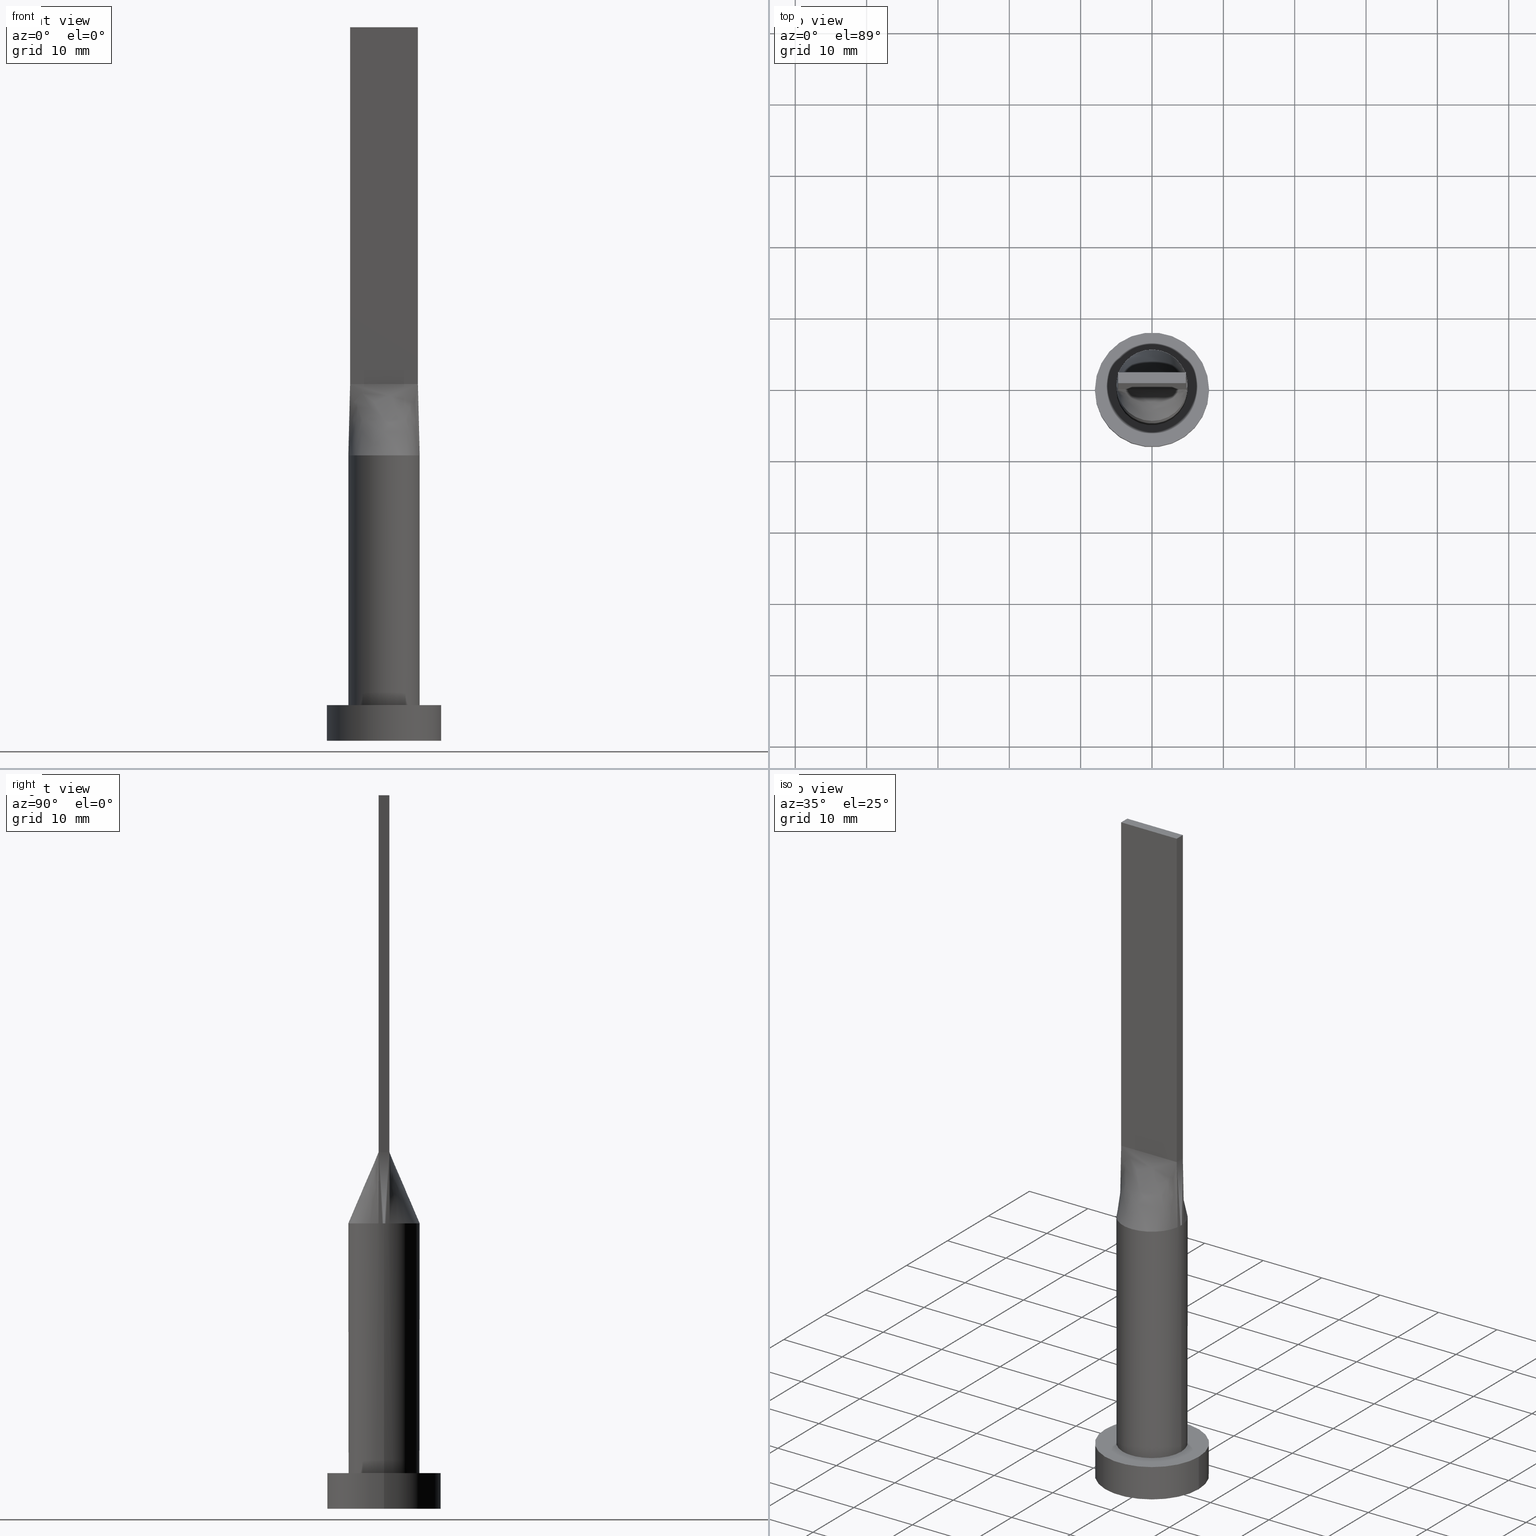
[diagram: canonical four-view strip — front | top / right | iso, engineering-drawing reading convention]
A machine part, canonical four-view strip (front | top / right | iso — engineering-drawing reading convention). The complete STEP part file that produces these views, byte-faithful:
ISO-10303-21;
HEADER;
FILE_DESCRIPTION (( 'STEP AP203' ),
    '1' );
FILE_NAME ('07e1.STEP',
    '2023-02-13T09:53:20',
    ( '' ),
    ( '' ),
    'SwSTEP 2.0',
    'SolidWorks 2019',
    '' );
FILE_SCHEMA (( 'CONFIG_CONTROL_DESIGN' ));
ENDSEC;

DATA;
#1 = DIRECTION ( 'NONE',  ( -0.000000000000000000, 0.000000000000000000, -1.000000000000000000 ) ) ;
#2 = CARTESIAN_POINT ( 'NONE',  ( -4.750000000000000000, 0.7500000000000002220, 100.0000000000000000 ) ) ;
#3 = VERTEX_POINT ( 'NONE', #569 ) ;
#4 = CARTESIAN_POINT ( 'NONE',  ( 4.029217956433126524, 3.021257902548482477, 40.00000000000000711 ) ) ;
#5 = DIRECTION ( 'NONE',  ( -0.000000000000000000, -0.000000000000000000, -1.000000000000000000 ) ) ;
#6 = APPLICATION_PROTOCOL_DEFINITION ( 'international standard', 'config_control_design', 1994, #356 ) ;
#7 = CARTESIAN_POINT ( 'NONE',  ( -4.750000000000000000, 0.7500000000000002220, 50.00000000000000000 ) ) ;
#8 = ORIENTED_EDGE ( 'NONE', *, *, #567, .F. ) ;
#9 = CARTESIAN_POINT ( 'NONE',  ( -4.753727492665067444, 1.629988260829202007, 40.00000000000001421 ) ) ;
#10 = CARTESIAN_POINT ( 'NONE',  ( -4.750000000000000000, 0.7500000000000002220, 100.0000000000000000 ) ) ;
#11 = CALENDAR_DATE ( 2023, 13, 2 ) ;
#12 = CC_DESIGN_PERSON_AND_ORGANIZATION_ASSIGNMENT ( #545, #498, ( #509 ) ) ;
#13 = EDGE_LOOP ( 'NONE', ( #165, #267, #454, #496 ) ) ;
#14 = CARTESIAN_POINT ( 'NONE',  ( 0.3560391241594590972, 5.000000000000001776, 40.00000000000000000 ) ) ;
#15 = LINE ( 'NONE', #251, #491 ) ;
#16 = CARTESIAN_POINT ( 'NONE',  ( 4.750000000000000000, 0.2500000000000009992, 50.00000000000000000 ) ) ;
#17 = AXIS2_PLACEMENT_3D ( 'NONE', #225, #127, #559 ) ;
#18 = ORIENTED_EDGE ( 'NONE', *, *, #128, .F. ) ;
#19 = CARTESIAN_POINT ( 'NONE',  ( 0.7119876437238013001, 4.961551549233180758, 40.00000000000001421 ) ) ;
#20 = PLANE ( 'NONE',  #197 ) ;
#21 = FACE_OUTER_BOUND ( 'NONE', #114, .T. ) ;
#22 = ORIENTED_EDGE ( 'NONE', *, *, #389, .F. ) ;
#23 = EDGE_CURVE ( 'NONE', #474, #97, #332, .T. ) ;
#24 = CARTESIAN_POINT ( 'NONE',  ( -0.7916666666666584140, -0.7499999999999995559, 50.00000000000000000 ) ) ;
#25 = CARTESIAN_POINT ( 'NONE',  ( -4.750000000000000000, 0.7500000000000002220, 50.00000000000000000 ) ) ;
#26 = ORIENTED_EDGE ( 'NONE', *, *, #45, .T. ) ;
#27 = CARTESIAN_POINT ( 'NONE',  ( -0.3958333333333254322, -0.7499999999999995559, 50.00000000000000000 ) ) ;
#28 = DIRECTION ( 'NONE',  ( 0.000000000000000000, 0.000000000000000000, 1.000000000000000000 ) ) ;
#29 = ORIENTED_EDGE ( 'NONE', *, *, #589, .T. ) ;
#30 = EDGE_LOOP ( 'NONE', ( #294, #263, #210, #205 ) ) ;
#31 = CARTESIAN_POINT ( 'NONE',  ( 1.732223102076450250, 4.702695359254404295, 39.99999999999997868 ) ) ;
#32 = CARTESIAN_POINT ( 'NONE',  ( -4.750000000000000000, -0.7499999999999991118, 50.00000000000000000 ) ) ;
#33 = VERTEX_POINT ( 'NONE', #2 ) ;
#34 = CARTESIAN_POINT ( 'NONE',  ( -0.7119876437238014111, -4.961551549233179870, 39.99999999999999289 ) ) ;
#35 = EDGE_CURVE ( 'NONE', #175, #323, #182, .T. ) ;
#36 = CARTESIAN_POINT ( 'NONE',  ( 3.166666666666673180, -0.7499999999999997780, 50.00000000000000000 ) ) ;
#37 = CARTESIAN_POINT ( 'NONE',  ( 4.332026455536841070, -2.547220758687719577, 40.00000000000001421 ) ) ;
#38 = CARTESIAN_POINT ( 'NONE',  ( -0.7119876437238006339, 4.961551549233178982, 40.00000000000000711 ) ) ;
#39 = EDGE_CURVE ( 'NONE', #123, #601, #511, .T. ) ;
#40 = CC_DESIGN_PERSON_AND_ORGANIZATION_ASSIGNMENT ( #266, #224, ( #438 ) ) ;
#41 = CARTESIAN_POINT ( 'NONE',  ( -3.958333333333336146, 0.7500000000000002220, 50.00000000000000000 ) ) ;
#42 = LINE ( 'NONE', #157, #65 ) ;
#43 = DIRECTION ( 'NONE',  ( 1.000000000000000000, 0.000000000000000000, 0.000000000000000000 ) ) ;
#44 = ORIENTED_EDGE ( 'NONE', *, *, #381, .F. ) ;
#45 = EDGE_CURVE ( 'NONE', #443, #474, #287, .T. ) ;
#46 = CARTESIAN_POINT ( 'NONE',  ( 4.938814826645345768, 0.7798128673650542853, 40.00000000000000000 ) ) ;
#47 = CIRCLE ( 'NONE', #134, 5.000000000000000000 ) ;
#48 = DIRECTION ( 'NONE',  ( 0.000000000000000000, 0.000000000000000000, 1.000000000000000000 ) ) ;
#49 = VECTOR ( 'NONE', #388, 1000.000000000000000 ) ;
#50 = ADVANCED_BREP_SHAPE_REPRESENTATION ( '07e1', ( #51, #362 ), #334 ) ;
#51 = MANIFOLD_SOLID_BREP ( 'P�idat vysunut�m5', #194 ) ;
#52 = DIRECTION ( 'NONE',  ( 1.000000000000000000, -6.847592668329501559E-17, 0.000000000000000000 ) ) ;
#53 = CARTESIAN_POINT ( 'NONE',  ( -2.177083333333339699, 0.7500000000000002220, 50.00000000000000000 ) ) ;
#54 = ADVANCED_FACE ( 'NONE', ( #336 ), #280, .F. ) ;
#55 = FACE_OUTER_BOUND ( 'NONE', #30, .T. ) ;
#56 = CARTESIAN_POINT ( 'NONE',  ( 4.999625637456156291, 0.2615280553041483547, 40.00000000000000000 ) ) ;
#57 = LINE ( 'NONE', #73, #347 ) ;
#58 = PLANE ( 'NONE',  #122 ) ;
#59 = APPROVAL_DATE_TIME ( #64, #275 ) ;
#60 = DIRECTION ( 'NONE',  ( 1.000000000000000000, 0.000000000000000000, 0.000000000000000000 ) ) ;
#61 = AXIS2_PLACEMENT_3D ( 'NONE', #405, #241, #43 ) ;
#62 = CARTESIAN_POINT ( 'NONE',  ( 1.732223102076450250, 4.702695359254404295, 39.99999999999997868 ) ) ;
#63 = LINE ( 'NONE', #517, #550 ) ;
#64 = DATE_AND_TIME ( #11, #523 ) ;
#65 = VECTOR ( 'NONE', #476, 1000.000000000000000 ) ;
#66 = LOCAL_TIME ( 10, 53, 20.00000000000000000, #521 ) ;
#67 = CARTESIAN_POINT ( 'NONE',  ( -4.750000000000000000, -0.7499999999999991118, 50.00000000000000000 ) ) ;
#68 = ORIENTED_EDGE ( 'NONE', *, *, #367, .T. ) ;
#69 = APPROVAL_DATE_TIME ( #292, #296 ) ;
#70 = CARTESIAN_POINT ( 'NONE',  ( 0.000000000000000000, 0.000000000000000000, 5.000000000000000000 ) ) ;
#71 = CC_DESIGN_PERSON_AND_ORGANIZATION_ASSIGNMENT ( #364, #145, ( #156 ) ) ;
#72 = ORIENTED_EDGE ( 'NONE', *, *, #420, .F. ) ;
#73 = CARTESIAN_POINT ( 'NONE',  ( 4.844407413322673328, 0.7649064336825270871, 45.00000000000000000 ) ) ;
#74 = DIRECTION ( 'NONE',  ( -0.000000000000000000, -0.000000000000000000, -1.000000000000000000 ) ) ;
#75 = ORIENTED_EDGE ( 'NONE', *, *, #192, .F. ) ;
#76 = EDGE_CURVE ( 'NONE', #323, #120, #200, .T. ) ;
#77 = CARTESIAN_POINT ( 'NONE',  ( -4.354166666666666075, -0.7499999999999992228, 50.00000000000000711 ) ) ;
#78 = CIRCLE ( 'NONE', #17, 5.000000000000000000 ) ;
#79 = CARTESIAN_POINT ( 'NONE',  ( 2.353781608410062454, 4.424438117685770777, 40.00000000000000000 ) ) ;
#80 = DIRECTION ( 'NONE',  ( 1.000000000000000000, -6.847592668329501559E-17, 0.000000000000000000 ) ) ;
#81 = ORIENTED_EDGE ( 'NONE', *, *, #420, .T. ) ;
#82 = CARTESIAN_POINT ( 'NONE',  ( 4.753727492665065668, 1.629988260829201563, 40.00000000000001421 ) ) ;
#83 = CARTESIAN_POINT ( 'NONE',  ( -4.753727492665065668, -1.629988260829201119, 40.00000000000000711 ) ) ;
#84 = APPROVAL_ROLE ( '' ) ;
#85 = CARTESIAN_POINT ( 'NONE',  ( -4.874625637456156291, 1.186344398896586716, 40.00000000000000000 ) ) ;
#86 = LOCAL_TIME ( 10, 53, 20.00000000000000000, #404 ) ;
#87 = CARTESIAN_POINT ( 'NONE',  ( 4.999812818728077701, 1.241126956226958231E-15, 40.00000000000000000 ) ) ;
#88 = CARTESIAN_POINT ( 'NONE',  ( 0.000000000000000000, 0.000000000000000000, 5.000000000000000000 ) ) ;
#89 = CARTESIAN_POINT ( 'NONE',  ( 0.1979166666666585250, 0.7500000000000001110, 50.00000000000000000 ) ) ;
#90 = FACE_OUTER_BOUND ( 'NONE', #304, .T. ) ;
#91 = EDGE_CURVE ( 'NONE', #443, #257, #478, .T. ) ;
#92 = CARTESIAN_POINT ( 'NONE',  ( -1.583333333333340587, 0.7500000000000002220, 50.00000000000000000 ) ) ;
#93 = DIRECTION ( 'NONE',  ( 0.000000000000000000, 0.000000000000000000, 1.000000000000000000 ) ) ;
#94 = VERTEX_POINT ( 'NONE', #514 ) ;
#95 = VECTOR ( 'NONE', #231, 1000.000000000000114 ) ;
#96 = CC_DESIGN_DATE_AND_TIME_ASSIGNMENT ( #502, #372, ( #509 ) ) ;
#97 = VERTEX_POINT ( 'NONE', #437 ) ;
#98 = CARTESIAN_POINT ( 'NONE',  ( -1.400150253878312823, 4.812847332616943419, 40.00000000000000711 ) ) ;
#99 = DIRECTION ( 'NONE',  ( 0.000000000000000000, 0.000000000000000000, 1.000000000000000000 ) ) ;
#100 = CALENDAR_DATE ( 2023, 13, 2 ) ;
#101 = EDGE_LOOP ( 'NONE', ( #330, #415, #151, #8, #126 ) ) ;
#102 = CARTESIAN_POINT ( 'NONE',  ( 1.583333333333324155, 0.7500000000000002220, 50.00000000000000000 ) ) ;
#103 = DIRECTION ( 'NONE',  ( -0.000000000000000000, -0.000000000000000000, -1.000000000000000000 ) ) ;
#104 = DIRECTION ( 'NONE',  ( -1.000000000000000000, 6.847592668329501559E-17, 0.000000000000000000 ) ) ;
#105 = ORIENTED_EDGE ( 'NONE', *, *, #45, .F. ) ;
#106 = CARTESIAN_POINT ( 'NONE',  ( 5.000000000000000000, 6.123233995736766282E-16, 5.000000000000000000 ) ) ;
#107 = DIRECTION ( 'NONE',  ( 0.000000000000000000, 0.000000000000000000, 1.000000000000000000 ) ) ;
#108 = CARTESIAN_POINT ( 'NONE',  ( -4.750000000000000000, 0.5000000000000000000, 50.00000000000000000 ) ) ;
#109 = ORIENTED_EDGE ( 'NONE', *, *, #206, .F. ) ;
#110 = CARTESIAN_POINT ( 'NONE',  ( 1.732223102076449583, -4.702695359254404295, 40.00000000000000711 ) ) ;
#111 = VECTOR ( 'NONE', #573, 1000.000000000000000 ) ;
#112 = DATE_TIME_ROLE ( 'creation_date' ) ;
#113 = CARTESIAN_POINT ( 'NONE',  ( -4.999625637456156291, -0.2615280553041481326, 40.00000000000000000 ) ) ;
#114 = EDGE_LOOP ( 'NONE', ( #432, #159, #105, #109, #539 ) ) ;
#115 = CARTESIAN_POINT ( 'NONE',  ( -3.166666666666662966, -0.7499999999999993339, 50.00000000000000711 ) ) ;
#116 = CARTESIAN_POINT ( 'NONE',  ( -4.938814826645345768, -0.7798128673650532861, 40.00000000000000000 ) ) ;
#117 = ADVANCED_FACE ( 'NONE', ( #397 ), #142, .T. ) ;
#118 = EDGE_LOOP ( 'NONE', ( #141, #193, #460, #44, #418, #317 ) ) ;
#119 = PLANE ( 'NONE',  #272 ) ;
#120 = VERTEX_POINT ( 'NONE', #350 ) ;
#121 = CARTESIAN_POINT ( 'NONE',  ( 0.000000000000000000, 0.000000000000000000, 5.000000000000000000 ) ) ;
#122 = AXIS2_PLACEMENT_3D ( 'NONE', #240, #202, #297 ) ;
#123 = VERTEX_POINT ( 'NONE', #299 ) ;
#124 = CARTESIAN_POINT ( 'NONE',  ( 5.000000000000000000, 6.123233995736766282E-16, 40.00000000000000000 ) ) ;
#125 = CARTESIAN_POINT ( 'NONE',  ( 1.400150253878312157, -4.812847332616943419, 39.99999999999999289 ) ) ;
#126 = ORIENTED_EDGE ( 'NONE', *, *, #551, .F. ) ;
#127 = DIRECTION ( 'NONE',  ( 0.000000000000000000, 0.000000000000000000, 1.000000000000000000 ) ) ;
#128 = EDGE_CURVE ( 'NONE', #570, #553, #577, .T. ) ;
#129 = CARTESIAN_POINT ( 'NONE',  ( 0.000000000000000000, 0.000000000000000000, 40.00000000000000000 ) ) ;
#130 = CARTESIAN_POINT ( 'NONE',  ( 0.000000000000000000, 0.000000000000000000, 40.00000000000000000 ) ) ;
#131 = CC_DESIGN_APPROVAL ( #395, ( #156 ) ) ;
#132 = CARTESIAN_POINT ( 'NONE',  ( 4.750000000000000000, -0.7499999999999997780, 50.00000000000000000 ) ) ;
#133 = VECTOR ( 'NONE', #340, 1000.000000000000000 ) ;
#134 = AXIS2_PLACEMENT_3D ( 'NONE', #144, #568, #154 ) ;
#135 = LINE ( 'NONE', #434, #262 ) ;
#136 = ADVANCED_FACE ( 'NONE', ( #409 ), #216, .T. ) ;
#137 = CARTESIAN_POINT ( 'NONE',  ( -4.750000000000000000, -0.7499999999999991118, 50.00000000000000000 ) ) ;
#138 = ORIENTED_EDGE ( 'NONE', *, *, #429, .F. ) ;
#139 = CARTESIAN_POINT ( 'NONE',  ( 4.354166666666665186, 0.7500000000000002220, 50.00000000000000000 ) ) ;
#140 = LINE ( 'NONE', #452, #361 ) ;
#141 = ORIENTED_EDGE ( 'NONE', *, *, #575, .F. ) ;
#142 = B_SPLINE_SURFACE_WITH_KNOTS ( 'NONE', 3, 1, ( 
 ( #442, #293 ),
 ( #189, #146 ),
 ( #522, #450 ),
 ( #56, #16 ),
 ( #244, #401 ),
 ( #582, #150 ) ),
 .UNSPECIFIED., .F., .F., .F.,
 ( 4, 2, 4 ),
 ( 2, 2 ),
 ( 0.000000000000000000, 0.5000000000000000000, 1.000000000000000000 ),
 ( 0.000000000000000000, 1.000000000000000000 ),
 .UNSPECIFIED. ) ;
#143 = CARTESIAN_POINT ( 'NONE',  ( 0.7916666666666568597, 0.7500000000000002220, 50.00000000000000000 ) ) ;
#144 = CARTESIAN_POINT ( 'NONE',  ( 0.000000000000000000, 0.000000000000000000, 40.00000000000000000 ) ) ;
#145 = PERSON_AND_ORGANIZATION_ROLE ( 'creator' ) ;
#146 = CARTESIAN_POINT ( 'NONE',  ( 4.750000000000000000, -0.4999999999999992784, 50.00000000000000000 ) ) ;
#147 = CARTESIAN_POINT ( 'NONE',  ( 8.000000000000000000, 9.797174393178825657E-16, 5.000000000000000000 ) ) ;
#148 = VECTOR ( 'NONE', #408, 1000.000000000000000 ) ;
#149 = DIRECTION ( 'NONE',  ( -0.000000000000000000, -0.000000000000000000, -1.000000000000000000 ) ) ;
#150 = CARTESIAN_POINT ( 'NONE',  ( 4.750000000000000000, 0.7500000000000002220, 50.00000000000000000 ) ) ;
#151 = ORIENTED_EDGE ( 'NONE', *, *, #557, .T. ) ;
#152 = ADVANCED_FACE ( 'NONE', ( #21 ), #516, .T. ) ;
#153 = CARTESIAN_POINT ( 'NONE',  ( 4.332026455536839293, 2.547220758687718689, 40.00000000000000711 ) ) ;
#154 = DIRECTION ( 'NONE',  ( 1.000000000000000000, 0.000000000000000000, 0.000000000000000000 ) ) ;
#155 = DIRECTION ( 'NONE',  ( 1.000000000000000000, 0.000000000000000000, 0.000000000000000000 ) ) ;
#156 = PRODUCT_DEFINITION ( 'NEZN�M�', '', #438, #617 ) ;
#157 = CARTESIAN_POINT ( 'NONE',  ( 8.000000000000000000, 9.797174393178825657E-16, 5.000000000000000000 ) ) ;
#158 = CARTESIAN_POINT ( 'NONE',  ( -4.750000000000000000, -0.4999999999999994449, 50.00000000000000000 ) ) ;
#159 = ORIENTED_EDGE ( 'NONE', *, *, #381, .T. ) ;
#160 = CARTESIAN_POINT ( 'NONE',  ( 4.750000000000000000, 0.7500000000000002220, 50.00000000000000000 ) ) ;
#161 = CARTESIAN_POINT ( 'NONE',  ( 0.7119876437238003009, -4.961551549233181646, 40.00000000000000711 ) ) ;
#162 = ADVANCED_FACE ( 'NONE', ( #591, #414 ), #303, .T. ) ;
#163 = APPROVAL_ROLE ( '' ) ;
#164 = DIRECTION ( 'NONE',  ( 0.000000000000000000, 0.000000000000000000, 1.000000000000000000 ) ) ;
#165 = ORIENTED_EDGE ( 'NONE', *, *, #470, .F. ) ;
#166 = CARTESIAN_POINT ( 'NONE',  ( -4.332026455536839293, -2.547220758687717801, 40.00000000000000711 ) ) ;
#167 = EDGE_LOOP ( 'NONE', ( #598, #607, #138, #81 ) ) ;
#168 = CARTESIAN_POINT ( 'NONE',  ( 3.404830936252118967, -3.673931880027069496, 40.00000000000002842 ) ) ;
#169 = EDGE_LOOP ( 'NONE', ( #29, #410, #615, #345 ) ) ;
#170 = CARTESIAN_POINT ( 'NONE',  ( -3.958333333333332149, -0.7499999999999993339, 50.00000000000000711 ) ) ;
#171 = ORIENTED_EDGE ( 'NONE', *, *, #470, .T. ) ;
#172 = CC_DESIGN_SECURITY_CLASSIFICATION ( #509, ( #438 ) ) ;
#173 = CARTESIAN_POINT ( 'NONE',  ( -2.353781608410062010, 4.424438117685770777, 39.99999999999998579 ) ) ;
#174 = CC_DESIGN_PERSON_AND_ORGANIZATION_ASSIGNMENT ( #310, #465, ( #438 ) ) ;
#175 = VERTEX_POINT ( 'NONE', #499 ) ;
#176 = CARTESIAN_POINT ( 'NONE',  ( -0.3560391241594593192, 5.000000000000000000, 39.99999999999998579 ) ) ;
#177 = DIRECTION ( 'NONE',  ( -1.000000000000000000, 0.000000000000000000, 0.000000000000000000 ) ) ;
#178 = EDGE_CURVE ( 'NONE', #570, #284, #490, .T. ) ;
#179 = CARTESIAN_POINT ( 'NONE',  ( 3.958333333333336146, -0.7499999999999997780, 50.00000000000000000 ) ) ;
#180 = PERSON ( 'NEUR�EN�', 'NEUR�EN�', 'NEUR�EN�', ('NEUR�EN�'), ('NEUR�EN�'), ('NEUR�EN�') ) ;
#181 = CARTESIAN_POINT ( 'NONE',  ( 0.3958333333333243220, 0.7500000000000002220, 50.00000000000000000 ) ) ;
#182 = CIRCLE ( 'NONE', #533, 5.000000000000000000 ) ;
#183 = AXIS2_PLACEMENT_3D ( 'NONE', #399, #445, #342 ) ;
#184 = CARTESIAN_POINT ( 'NONE',  ( 0.9895833333333237114, 0.7500000000000002220, 50.00000000000000000 ) ) ;
#185 = CARTESIAN_POINT ( 'NONE',  ( 0.000000000000000000, 0.000000000000000000, 0.000000000000000000 ) ) ;
#186 = VERTEX_POINT ( 'NONE', #209 ) ;
#187 = CARTESIAN_POINT ( 'NONE',  ( 1.400150253878312823, 4.812847332616943419, 40.00000000000000711 ) ) ;
#188 = CARTESIAN_POINT ( 'NONE',  ( 4.750000000000000000, -0.7499999999999997780, 100.0000000000000000 ) ) ;
#189 = CARTESIAN_POINT ( 'NONE',  ( 4.979355367185886116, -0.5230561106082984857, 40.00000000000000000 ) ) ;
#190 = CARTESIAN_POINT ( 'NONE',  ( -4.938814826645345768, 0.7798128673650545073, 40.00000000000000000 ) ) ;
#191 = CARTESIAN_POINT ( 'NONE',  ( -8.000000000000000000, 0.000000000000000000, 0.000000000000000000 ) ) ;
#192 = EDGE_CURVE ( 'NONE', #543, #120, #211, .T. ) ;
#193 = ORIENTED_EDGE ( 'NONE', *, *, #417, .F. ) ;
#194 = CLOSED_SHELL ( 'NONE', ( #508, #510, #136, #162, #279, #612, #495, #117, #152, #541, #331, #339, #54, #319, #468 ) ) ;
#195 = VERTEX_POINT ( 'NONE', #453 ) ;
#196 = CARTESIAN_POINT ( 'NONE',  ( -2.353781608410062010, 4.424438117685770777, 39.99999999999998579 ) ) ;
#197 = AXIS2_PLACEMENT_3D ( 'NONE', #394, #99, #526 ) ;
#198 = CARTESIAN_POINT ( 'NONE',  ( 4.938814826645345768, 0.7798128673650538412, 40.00000000000000000 ) ) ;
#199 = APPROVAL_STATUS ( 'not_yet_approved' ) ;
#200 = LINE ( 'NONE', #384, #133 ) ;
#201 = CC_DESIGN_PERSON_AND_ORGANIZATION_ASSIGNMENT ( #203, #574, ( #387 ) ) ;
#202 = DIRECTION ( 'NONE',  ( 0.000000000000000000, -1.000000000000000000, 0.000000000000000000 ) ) ;
#203 = PERSON_AND_ORGANIZATION ( #180, #278 ) ;
#204 = CARTESIAN_POINT ( 'NONE',  ( -4.750000000000000000, 0.2500000000000000555, 50.00000000000000000 ) ) ;
#205 = ORIENTED_EDGE ( 'NONE', *, *, #389, .T. ) ;
#206 = EDGE_CURVE ( 'NONE', #601, #443, #256, .T. ) ;
#207 = CARTESIAN_POINT ( 'NONE',  ( 2.643217737595827455, -4.256483892511438327, 40.00000000000000000 ) ) ;
#208 = APPLICATION_PROTOCOL_DEFINITION ( 'international standard', 'config_control_design', 1994, #324 ) ;
#209 = CARTESIAN_POINT ( 'NONE',  ( 8.000000000000000000, 9.797174393178825657E-16, 0.000000000000000000 ) ) ;
#210 = ORIENTED_EDGE ( 'NONE', *, *, #535, .F. ) ;
#211 = CIRCLE ( 'NONE', #286, 5.000000000000000000 ) ;
#212 = CARTESIAN_POINT ( 'NONE',  ( -8.000000000000000000, 0.000000000000000000, 5.000000000000000000 ) ) ;
#213 = CARTESIAN_POINT ( 'NONE',  ( 0.7916666666666752894, -0.7499999999999995559, 50.00000000000000000 ) ) ;
#214 = SECURITY_CLASSIFICATION_LEVEL ( 'unclassified' ) ;
#215 = VECTOR ( 'NONE', #338, 1000.000000000000000 ) ;
#216 = CYLINDRICAL_SURFACE ( 'NONE', #433, 8.000000000000000000 ) ;
#217 = ORIENTED_EDGE ( 'NONE', *, *, #567, .T. ) ;
#218 = CARTESIAN_POINT ( 'NONE',  ( -4.874625637456154514, -1.186344398896584718, 39.99999999999999289 ) ) ;
#219 = PERSON_AND_ORGANIZATION ( #180, #278 ) ;
#220 = ORIENTED_EDGE ( 'NONE', *, *, #325, .F. ) ;
#221 = CARTESIAN_POINT ( 'NONE',  ( -1.583333333333326376, -0.7499999999999995559, 50.00000000000001421 ) ) ;
#222 = CIRCLE ( 'NONE', #333, 8.000000000000000000 ) ;
#223 = DIRECTION ( 'NONE',  ( 0.000000000000000000, 0.000000000000000000, 1.000000000000000000 ) ) ;
#224 = PERSON_AND_ORGANIZATION_ROLE ( 'creator' ) ;
#225 = CARTESIAN_POINT ( 'NONE',  ( 0.000000000000000000, 0.000000000000000000, 40.00000000000000000 ) ) ;
#226 = CARTESIAN_POINT ( 'NONE',  ( 4.753727492665065668, -1.629988260829203561, 40.00000000000000000 ) ) ;
#227 = EDGE_CURVE ( 'NONE', #186, #284, #222, .T. ) ;
#228 = FACE_OUTER_BOUND ( 'NONE', #392, .T. ) ;
#229 = AXIS2_PLACEMENT_3D ( 'NONE', #88, #374, #554 ) ;
#230 = CARTESIAN_POINT ( 'NONE',  ( 4.874625637456156291, -1.186344398896586938, 39.99999999999999289 ) ) ;
#231 = DIRECTION ( 'NONE',  ( -0.01887803397728732291, -0.002980742206940062075, -0.9998173508241633423 ) ) ;
#232 = CARTESIAN_POINT ( 'NONE',  ( -4.874625637456156291, 1.186344398896586716, 40.00000000000000000 ) ) ;
#233 = DIRECTION ( 'NONE',  ( 1.000000000000000000, 0.000000000000000000, 0.000000000000000000 ) ) ;
#234 = DIRECTION ( 'NONE',  ( 0.000000000000000000, 0.000000000000000000, 1.000000000000000000 ) ) ;
#235 = ORIENTED_EDGE ( 'NONE', *, *, #535, .T. ) ;
#236 = AXIS2_PLACEMENT_3D ( 'NONE', #585, #390, #1 ) ;
#237 = FACE_OUTER_BOUND ( 'NONE', #169, .T. ) ;
#238 = LOCAL_TIME ( 10, 53, 20.00000000000000000, #606 ) ;
#239 = B_SPLINE_SURFACE_WITH_KNOTS ( 'NONE', 3, 1, ( 
 ( #46, #250 ),
 ( #448, #139 ),
 ( #525, #515 ),
 ( #153, #398 ),
 ( #4, #295 ),
 ( #512, #528 ),
 ( #346, #488 ),
 ( #621, #102 ),
 ( #242, #571 ),
 ( #62, #184 ),
 ( #187, #143 ),
 ( #472, #181 ),
 ( #14, #89 ),
 ( #393, #341 ),
 ( #383, #480 ),
 ( #98, #351 ),
 ( #475, #519 ),
 ( #196, #288 ),
 ( #566, #92 ),
 ( #245, #402 ),
 ( #281, #53 ),
 ( #444, #578 ),
 ( #451, #584 ),
 ( #9, #41 ),
 ( #232, #564 ),
 ( #190, #484 ) ),
 .UNSPECIFIED., .F., .F., .F.,
 ( 4, 2, 2, 2, 2, 2, 2, 2, 2, 2, 2, 2, 4 ),
 ( 2, 2 ),
 ( 0.000000000000000000, 0.1250000000000001388, 0.2500000000000002220, 0.3125000000000002776, 0.3750000000000002776, 0.4375000000000002776, 0.5000000000000002220, 0.5625000000000002220, 0.6250000000000001110, 0.6875000000000001110, 0.7500000000000001110, 0.8750000000000001110, 1.000000000000000000 ),
 ( 0.000000000000000000, 1.000000000000000000 ),
 .UNSPECIFIED. ) ;
#240 = CARTESIAN_POINT ( 'NONE',  ( 4.750000000000000000, 0.7500000000000002220, 100.0000000000000000 ) ) ;
#241 = DIRECTION ( 'NONE',  ( 0.000000000000000000, 0.000000000000000000, 1.000000000000000000 ) ) ;
#242 = CARTESIAN_POINT ( 'NONE',  ( 2.353781608410062454, 4.424438117685770777, 40.00000000000000000 ) ) ;
#243 = LINE ( 'NONE', #188, #111 ) ;
#244 = CARTESIAN_POINT ( 'NONE',  ( 4.979355367185886116, 0.5230561106082972644, 40.00000000000000000 ) ) ;
#245 = CARTESIAN_POINT ( 'NONE',  ( -3.168723755431092748, 3.881165404529570484, 39.99999999999997868 ) ) ;
#246 = LINE ( 'NONE', #481, #148 ) ;
#247 = SHAPE_DEFINITION_REPRESENTATION ( #290, #50 ) ;
#248 = CARTESIAN_POINT ( 'NONE',  ( 0.000000000000000000, 0.000000000000000000, 40.00000000000000000 ) ) ;
#249 = ORIENTED_EDGE ( 'NONE', *, *, #429, .T. ) ;
#250 = CARTESIAN_POINT ( 'NONE',  ( 4.750000000000000000, 0.7500000000000002220, 50.00000000000000000 ) ) ;
#251 = CARTESIAN_POINT ( 'NONE',  ( 4.750000000000000000, 0.7500000000000002220, 100.0000000000000000 ) ) ;
#252 = CARTESIAN_POINT ( 'NONE',  ( -8.000000000000000000, 0.000000000000000000, 5.000000000000000000 ) ) ;
#253 = VERTEX_POINT ( 'NONE', #198 ) ;
#254 = DIRECTION ( 'NONE',  ( -0.01887803397728732291, -0.002980742206940007865, 0.9998173508241633423 ) ) ;
#255 = FACE_OUTER_BOUND ( 'NONE', #503, .T. ) ;
#256 = LINE ( 'NONE', #25, #318 ) ;
#257 = VERTEX_POINT ( 'NONE', #579 ) ;
#258 = CARTESIAN_POINT ( 'NONE',  ( -2.643217737595827010, -4.256483892511436551, 39.99999999999999289 ) ) ;
#259 = DIRECTION ( 'NONE',  ( -0.000000000000000000, -0.000000000000000000, -1.000000000000000000 ) ) ;
#260 = EDGE_LOOP ( 'NONE', ( #457, #18, #583, #500 ) ) ;
#261 = CARTESIAN_POINT ( 'NONE',  ( -4.750000000000000000, -0.7499999999999991118, 50.00000000000000000 ) ) ;
#262 = VECTOR ( 'NONE', #300, 1000.000000000000114 ) ;
#263 = ORIENTED_EDGE ( 'NONE', *, *, #367, .F. ) ;
#264 = DIRECTION ( 'NONE',  ( 0.000000000000000000, 0.000000000000000000, 1.000000000000000000 ) ) ;
#265 = EDGE_CURVE ( 'NONE', #284, #186, #581, .T. ) ;
#266 = PERSON_AND_ORGANIZATION ( #180, #278 ) ;
#267 = ORIENTED_EDGE ( 'NONE', *, *, #270, .T. ) ;
#268 = CARTESIAN_POINT ( 'NONE',  ( 4.332026455536839293, 2.547220758687718689, 40.00000000000000711 ) ) ;
#269 = CARTESIAN_POINT ( 'NONE',  ( -0.1979166666666593299, -0.7499999999999994449, 50.00000000000000000 ) ) ;
#270 = EDGE_CURVE ( 'NONE', #553, #186, #42, .T. ) ;
#271 = VECTOR ( 'NONE', #52, 1000.000000000000000 ) ;
#272 = AXIS2_PLACEMENT_3D ( 'NONE', #600, #223, #605 ) ;
#273 = EDGE_CURVE ( 'NONE', #175, #601, #285, .T. ) ;
#274 = CARTESIAN_POINT ( 'NONE',  ( -4.938831943662458812, 0.7798155886440081286, 40.00000000000000000 ) ) ;
#275 = APPROVAL ( #375, 'NEUR�EN�' ) ;
#276 = CARTESIAN_POINT ( 'NONE',  ( -1.732223102076449806, 4.702695359254402518, 39.99999999999999289 ) ) ;
#277 = VECTOR ( 'NONE', #5, 1000.000000000000000 ) ;
#278 = ORGANIZATION ( 'NEUR�EN�', 'NEUR�EN�', '' ) ;
#279 = ADVANCED_FACE ( 'NONE', ( #485 ), #20, .F. ) ;
#280 = PLANE ( 'NONE',  #563 ) ;
#281 = CARTESIAN_POINT ( 'NONE',  ( -3.404830936252120299, 3.673931880027067720, 40.00000000000000711 ) ) ;
#282 = CARTESIAN_POINT ( 'NONE',  ( 0.000000000000000000, 0.000000000000000000, 0.000000000000000000 ) ) ;
#283 = DIRECTION ( 'NONE',  ( 6.847592668329501559E-17, 1.000000000000000000, -0.000000000000000000 ) ) ;
#284 = VERTEX_POINT ( 'NONE', #191 ) ;
#285 = LINE ( 'NONE', #590, #371 ) ;
#286 = AXIS2_PLACEMENT_3D ( 'NONE', #459, #28, #358 ) ;
#287 = LINE ( 'NONE', #587, #95 ) ;
#288 = CARTESIAN_POINT ( 'NONE',  ( -1.385416666666674068, 0.7500000000000002220, 50.00000000000000000 ) ) ;
#289 = AXIS2_PLACEMENT_3D ( 'NONE', #130, #471, #329 ) ;
#290 = PRODUCT_DEFINITION_SHAPE ( 'NONE', 'NONE',  #156 ) ;
#291 = CARTESIAN_POINT ( 'NONE',  ( 0.000000000000000000, 0.000000000000000000, 5.000000000000000000 ) ) ;
#292 = DATE_AND_TIME ( #100, #66 ) ;
#293 = CARTESIAN_POINT ( 'NONE',  ( 4.750000000000000000, -0.7499999999999997780, 50.00000000000000000 ) ) ;
#294 = ORIENTED_EDGE ( 'NONE', *, *, #39, .T. ) ;
#295 = CARTESIAN_POINT ( 'NONE',  ( 2.770833333333326376, 0.7500000000000002220, 50.00000000000000000 ) ) ;
#296 = APPROVAL ( #493, 'NEUR�EN�' ) ;
#297 = DIRECTION ( 'NONE',  ( 0.000000000000000000, -0.000000000000000000, -1.000000000000000000 ) ) ;
#298 = PERSON_AND_ORGANIZATION ( #180, #278 ) ;
#299 = CARTESIAN_POINT ( 'NONE',  ( 4.750000000000000000, 0.7500000000000002220, 50.00000000000000000 ) ) ;
#300 = DIRECTION ( 'NONE',  ( -0.01887803397728732291, 0.002980742206940386902, 0.9998173508241633423 ) ) ;
#301 = DIRECTION ( 'NONE',  ( 0.01887803397728732291, -0.002980742206940072483, 0.9998173508241633423 ) ) ;
#302 = DATE_AND_TIME ( #586, #86 ) ;
#303 = PLANE ( 'NONE',  #562 ) ;
#304 = EDGE_LOOP ( 'NONE', ( #217, #22, #220, #548 ) ) ;
#305 = CARTESIAN_POINT ( 'NONE',  ( 2.353781608410061121, -4.424438117685769889, 39.99999999999999289 ) ) ;
#306 = PERSON_AND_ORGANIZATION ( #180, #278 ) ;
#307 = CARTESIAN_POINT ( 'NONE',  ( 0.000000000000000000, 0.000000000000000000, 5.000000000000000000 ) ) ;
#308 = EDGE_LOOP ( 'NONE', ( #479, #75 ) ) ;
#309 = CARTESIAN_POINT ( 'NONE',  ( -2.770833333333329040, -0.7499999999999994449, 50.00000000000001421 ) ) ;
#310 = PERSON_AND_ORGANIZATION ( #180, #278 ) ;
#311 = CARTESIAN_POINT ( 'NONE',  ( -4.750000000000000000, 0.7500000000000002220, 50.00000000000000000 ) ) ;
#312 = UNCERTAINTY_MEASURE_WITH_UNIT (LENGTH_MEASURE( 1.000000000000000082E-05 ), #527, 'distance_accuracy_value', 'NONE');
#313 = ORIENTED_EDGE ( 'NONE', *, *, #128, .T. ) ;
#314 = CARTESIAN_POINT ( 'NONE',  ( 4.938814826645345768, 0.7798128673650538412, 40.00000000000000000 ) ) ;
#315 = CARTESIAN_POINT ( 'NONE',  ( -1.385416666666659413, -0.7499999999999995559, 50.00000000000001421 ) ) ;
#316 = CALENDAR_DATE ( 2023, 13, 2 ) ;
#317 = ORIENTED_EDGE ( 'NONE', *, *, #426, .T. ) ;
#318 = VECTOR ( 'NONE', #520, 1000.000000000000000 ) ;
#319 = ADVANCED_FACE ( 'NONE', ( #90 ), #473, .F. ) ;
#320 = DIRECTION ( 'NONE',  ( 1.000000000000000000, 0.000000000000000000, 0.000000000000000000 ) ) ;
#321 = APPROVAL_PERSON_ORGANIZATION ( #306, #296, #396 ) ;
#322 = CARTESIAN_POINT ( 'NONE',  ( 4.029217956433124748, -3.021257902548483365, 40.00000000000002132 ) ) ;
#323 = VERTEX_POINT ( 'NONE', #440 ) ;
#324 = APPLICATION_CONTEXT ( 'configuration controlled 3d designs of mechanical parts and assemblies' ) ;
#325 = EDGE_CURVE ( 'NONE', #195, #3, #246, .T. ) ;
#326 = CARTESIAN_POINT ( 'NONE',  ( -3.404830936252120299, 3.673931880027067720, 40.00000000000000711 ) ) ;
#327 = DIRECTION ( 'NONE',  ( -0.000000000000000000, -0.000000000000000000, -1.000000000000000000 ) ) ;
#328 = AXIS2_PLACEMENT_3D ( 'NONE', #185, #355, #233 ) ;
#329 = DIRECTION ( 'NONE',  ( -1.000000000000000000, 0.000000000000000000, 0.000000000000000000 ) ) ;
#330 = ORIENTED_EDGE ( 'NONE', *, *, #417, .T. ) ;
#331 = ADVANCED_FACE ( 'NONE', ( #55 ), #58, .F. ) ;
#332 = CIRCLE ( 'NONE', #61, 5.000000000000000000 ) ;
#333 = AXIS2_PLACEMENT_3D ( 'NONE', #282, #93, #348 ) ;
#334 =( GEOMETRIC_REPRESENTATION_CONTEXT ( 3 ) GLOBAL_UNCERTAINTY_ASSIGNED_CONTEXT ( ( #312 ) ) GLOBAL_UNIT_ASSIGNED_CONTEXT ( ( #527, #441, #486 ) ) REPRESENTATION_CONTEXT ( 'NONE', 'WORKASPACE' ) );
#335 = LINE ( 'NONE', #439, #215 ) ;
#336 = FACE_OUTER_BOUND ( 'NONE', #167, .T. ) ;
#337 = ORIENTED_EDGE ( 'NONE', *, *, #524, .T. ) ;
#338 = DIRECTION ( 'NONE',  ( -1.000000000000000000, 0.000000000000000000, 0.000000000000000000 ) ) ;
#339 = ADVANCED_FACE ( 'NONE', ( #403 ), #435, .F. ) ;
#340 = DIRECTION ( 'NONE',  ( -0.000000000000000000, -0.000000000000000000, -1.000000000000000000 ) ) ;
#341 = CARTESIAN_POINT ( 'NONE',  ( -0.1979166666666745400, 0.7500000000000002220, 50.00000000000000000 ) ) ;
#342 = DIRECTION ( 'NONE',  ( 1.000000000000000000, 2.664535259100375697E-15, 0.000000000000000000 ) ) ;
#343 = CARTESIAN_POINT ( 'NONE',  ( 0.000000000000000000, 0.000000000000000000, 0.000000000000000000 ) ) ;
#344 = CC_DESIGN_DATE_AND_TIME_ASSIGNMENT ( #302, #112, ( #156 ) ) ;
#345 = ORIENTED_EDGE ( 'NONE', *, *, #557, .F. ) ;
#346 = CARTESIAN_POINT ( 'NONE',  ( 3.168723755431093192, 3.881165404529570040, 39.99999999999999289 ) ) ;
#347 = VECTOR ( 'NONE', #254, 1000.000000000000114 ) ;
#348 = DIRECTION ( 'NONE',  ( 1.000000000000000000, 0.000000000000000000, 0.000000000000000000 ) ) ;
#349 = APPROVAL_DATE_TIME ( #580, #395 ) ;
#350 = CARTESIAN_POINT ( 'NONE',  ( -5.000000000000000000, 0.000000000000000000, 5.000000000000000000 ) ) ;
#351 = CARTESIAN_POINT ( 'NONE',  ( -0.7916666666666754004, 0.7500000000000002220, 50.00000000000000000 ) ) ;
#352 = DIRECTION ( 'NONE',  ( -1.000000000000000000, 0.000000000000000000, 0.000000000000000000 ) ) ;
#353 = CARTESIAN_POINT ( 'NONE',  ( -4.938814826645345768, 0.7798128673650545073, 40.00000000000000000 ) ) ;
#354 = ORIENTED_EDGE ( 'NONE', *, *, #76, .F. ) ;
#355 = DIRECTION ( 'NONE',  ( 0.000000000000000000, 0.000000000000000000, 1.000000000000000000 ) ) ;
#356 = APPLICATION_CONTEXT ( 'configuration controlled 3d designs of mechanical parts and assemblies' ) ;
#357 = AXIS2_PLACEMENT_3D ( 'NONE', #487, #164, #155 ) ;
#358 = DIRECTION ( 'NONE',  ( 1.000000000000000000, 0.000000000000000000, 0.000000000000000000 ) ) ;
#359 = ORIENTED_EDGE ( 'NONE', *, *, #35, .F. ) ;
#360 = CARTESIAN_POINT ( 'NONE',  ( 2.643217737595826566, 4.256483892511437439, 39.99999999999998579 ) ) ;
#361 = VECTOR ( 'NONE', #149, 1000.000000000000000 ) ;
#362 = AXIS2_PLACEMENT_3D ( 'NONE', #343, #447, #60 ) ;
#363 = CARTESIAN_POINT ( 'NONE',  ( 1.979166666666674734, -0.7499999999999997780, 50.00000000000000000 ) ) ;
#364 = PERSON_AND_ORGANIZATION ( #180, #278 ) ;
#365 = CARTESIAN_POINT ( 'NONE',  ( -4.750000000000000000, -0.2499999999999997224, 50.00000000000000000 ) ) ;
#366 = CARTESIAN_POINT ( 'NONE',  ( -4.029217956433126524, -3.021257902548482033, 40.00000000000000711 ) ) ;
#367 = EDGE_CURVE ( 'NONE', #33, #601, #449, .T. ) ;
#368 = ORIENTED_EDGE ( 'NONE', *, *, #575, .T. ) ;
#369 = CARTESIAN_POINT ( 'NONE',  ( 4.874625637456157179, 1.186344398896585606, 40.00000000000000000 ) ) ;
#370 = CARTESIAN_POINT ( 'NONE',  ( -3.168723755431094524, -3.881165404529569152, 39.99999999999999289 ) ) ;
#371 = VECTOR ( 'NONE', #301, 1000.000000000000114 ) ;
#372 = DATE_TIME_ROLE ( 'classification_date' ) ;
#373 = EDGE_LOOP ( 'NONE', ( #620, #423 ) ) ;
#374 = DIRECTION ( 'NONE',  ( -0.000000000000000000, -0.000000000000000000, -1.000000000000000000 ) ) ;
#375 = APPROVAL_STATUS ( 'not_yet_approved' ) ;
#376 = CARTESIAN_POINT ( 'NONE',  ( -4.332026455536841070, 2.547220758687717801, 40.00000000000000711 ) ) ;
#377 = CARTESIAN_POINT ( 'NONE',  ( 4.354166666666667851, -0.7499999999999997780, 50.00000000000000000 ) ) ;
#378 = CARTESIAN_POINT ( 'NONE',  ( -1.400150253878312823, 4.812847332616943419, 40.00000000000000711 ) ) ;
#379 = CARTESIAN_POINT ( 'NONE',  ( 4.938814826645345768, -0.7798128673650571718, 40.00000000000000000 ) ) ;
#380 = CC_DESIGN_APPROVAL ( #296, ( #438 ) ) ;
#381 = EDGE_CURVE ( 'NONE', #323, #474, #47, .T. ) ;
#382 = FACE_OUTER_BOUND ( 'NONE', #13, .T. ) ;
#383 = CARTESIAN_POINT ( 'NONE',  ( -0.7119876437238006339, 4.961551549233178982, 40.00000000000000711 ) ) ;
#384 = CARTESIAN_POINT ( 'NONE',  ( -5.000000000000000000, 0.000000000000000000, 40.00000000000000000 ) ) ;
#385 = LOCAL_TIME ( 10, 53, 20.00000000000000000, #400 ) ;
#386 = EDGE_LOOP ( 'NONE', ( #483, #72, #531, #68 ) ) ;
#387 = PRODUCT ( '07e1', '07e1', '', ( #595 ) ) ;
#388 = DIRECTION ( 'NONE',  ( 0.000000000000000000, -1.000000000000000000, 0.000000000000000000 ) ) ;
#389 = EDGE_CURVE ( 'NONE', #3, #123, #15, .T. ) ;
#390 = DIRECTION ( 'NONE',  ( 1.000000000000000000, 0.000000000000000000, -0.000000000000000000 ) ) ;
#391 = EDGE_LOOP ( 'NONE', ( #313, #171 ) ) ;
#392 = EDGE_LOOP ( 'NONE', ( #406, #368, #518, #354, #359, #603 ) ) ;
#393 = CARTESIAN_POINT ( 'NONE',  ( -0.3560391241594593192, 5.000000000000000000, 39.99999999999998579 ) ) ;
#394 = CARTESIAN_POINT ( 'NONE',  ( 0.000000000000000000, 0.000000000000000000, 0.000000000000000000 ) ) ;
#395 = APPROVAL ( #199, 'NEUR�EN�' ) ;
#396 = APPROVAL_ROLE ( '' ) ;
#397 = FACE_OUTER_BOUND ( 'NONE', #101, .T. ) ;
#398 = CARTESIAN_POINT ( 'NONE',  ( 3.166666666666660745, 0.7500000000000002220, 50.00000000000000000 ) ) ;
#399 = CARTESIAN_POINT ( 'NONE',  ( 0.000000000000000000, 0.000000000000000000, 40.00000000000000000 ) ) ;
#400 = COORDINATED_UNIVERSAL_TIME_OFFSET ( 1, 0, .AHEAD. ) ;
#401 = CARTESIAN_POINT ( 'NONE',  ( 4.750000000000000000, 0.5000000000000006661, 50.00000000000000000 ) ) ;
#402 = CARTESIAN_POINT ( 'NONE',  ( -1.979166666666673402, 0.7500000000000002220, 50.00000000000000000 ) ) ;
#403 = FACE_OUTER_BOUND ( 'NONE', #386, .T. ) ;
#404 = COORDINATED_UNIVERSAL_TIME_OFFSET ( 1, 0, .AHEAD. ) ;
#405 = CARTESIAN_POINT ( 'NONE',  ( 0.000000000000000000, 0.000000000000000000, 40.00000000000000000 ) ) ;
#406 = ORIENTED_EDGE ( 'NONE', *, *, #513, .F. ) ;
#407 = EDGE_CURVE ( 'NONE', #195, #257, #243, .T. ) ;
#408 = DIRECTION ( 'NONE',  ( 0.000000000000000000, 1.000000000000000000, 0.000000000000000000 ) ) ;
#409 = FACE_OUTER_BOUND ( 'NONE', #260, .T. ) ;
#410 = ORIENTED_EDGE ( 'NONE', *, *, #273, .T. ) ;
#411 = LINE ( 'NONE', #124, #560 ) ;
#412 = FACE_OUTER_BOUND ( 'NONE', #588, .T. ) ;
#413 = VECTOR ( 'NONE', #74, 1000.000000000000000 ) ;
#414 = FACE_OUTER_BOUND ( 'NONE', #391, .T. ) ;
#415 = ORIENTED_EDGE ( 'NONE', *, *, #513, .T. ) ;
#416 = CARTESIAN_POINT ( 'NONE',  ( -1.400150253878313711, -4.812847332616943419, 40.00000000000000711 ) ) ;
#417 = EDGE_CURVE ( 'NONE', #97, #506, #597, .T. ) ;
#418 = ORIENTED_EDGE ( 'NONE', *, *, #76, .T. ) ;
#419 = CARTESIAN_POINT ( 'NONE',  ( 3.168723755431093192, 3.881165404529570040, 39.99999999999999289 ) ) ;
#420 = EDGE_CURVE ( 'NONE', #94, #443, #140, .T. ) ;
#421 = CARTESIAN_POINT ( 'NONE',  ( 1.400150253878312823, 4.812847332616943419, 40.00000000000000711 ) ) ;
#422 = CARTESIAN_POINT ( 'NONE',  ( -0.3560391241594598188, -5.000000000000001776, 40.00000000000000000 ) ) ;
#423 = ORIENTED_EDGE ( 'NONE', *, *, #227, .F. ) ;
#424 = CARTESIAN_POINT ( 'NONE',  ( -1.732223102076450250, -4.702695359254402518, 39.99999999999998579 ) ) ;
#425 = AXIS2_PLACEMENT_3D ( 'NONE', #529, #352, #48 ) ;
#426 = EDGE_CURVE ( 'NONE', #120, #543, #538, .T. ) ;
#427 = LINE ( 'NONE', #616, #49 ) ;
#428 = AXIS2_PLACEMENT_3D ( 'NONE', #129, #327, #177 ) ;
#429 = EDGE_CURVE ( 'NONE', #94, #195, #63, .T. ) ;
#430 = CC_DESIGN_APPROVAL ( #275, ( #509 ) ) ;
#431 = B_SPLINE_CURVE_WITH_KNOTS ( 'NONE', 3,
 ( #314, #369, #82, #268, #593, #504, #419, #360, #79, #31, #421, #19, #604, #176, #38, #378, #276, #173, #561, #467, #326, #611, #376, #555, #85, #274 ),
 .UNSPECIFIED., .F., .F.,
 ( 4, 2, 2, 2, 2, 2, 2, 2, 2, 2, 2, 2, 4 ),
 ( 0.000000000000000000, 0.1250000000000001388, 0.2500000000000002220, 0.3125000000000002776, 0.3750000000000002776, 0.4375000000000002776, 0.5000000000000002220, 0.5625000000000002220, 0.6250000000000001110, 0.6875000000000001110, 0.7500000000000001110, 0.8750000000000001110, 1.000000000000000000 ),
 .UNSPECIFIED. ) ;
#432 = ORIENTED_EDGE ( 'NONE', *, *, #35, .T. ) ;
#433 = AXIS2_PLACEMENT_3D ( 'NONE', #70, #259, #530 ) ;
#434 = CARTESIAN_POINT ( 'NONE',  ( 4.844407413322673328, -0.7649064336825285304, 45.00000000000000000 ) ) ;
#435 = PLANE ( 'NONE',  #236 ) ;
#436 = CIRCLE ( 'NONE', #477, 8.000000000000000000 ) ;
#437 = CARTESIAN_POINT ( 'NONE',  ( 4.938833698301754893, -0.7798158709413661738, 40.00000000000000000 ) ) ;
#438 = PRODUCT_DEFINITION_FORMATION_WITH_SPECIFIED_SOURCE ( 'LIBOVOLN�', '', #387, .NOT_KNOWN. ) ;
#439 = CARTESIAN_POINT ( 'NONE',  ( 4.750000000000000000, 0.7500000000000002220, 100.0000000000000000 ) ) ;
#440 = CARTESIAN_POINT ( 'NONE',  ( -4.999812818728077701, -1.193032336741890821E-15, 40.00000000000000000 ) ) ;
#441 =( NAMED_UNIT ( * ) PLANE_ANGLE_UNIT ( ) SI_UNIT ( $, .RADIAN. ) );
#442 = CARTESIAN_POINT ( 'NONE',  ( 4.938814826645345768, -0.7798128673650550624, 40.00000000000000000 ) ) ;
#443 = VERTEX_POINT ( 'NONE', #32 ) ;
#444 = CARTESIAN_POINT ( 'NONE',  ( -4.029217956433124748, 3.021257902548482033, 40.00000000000001421 ) ) ;
#445 = DIRECTION ( 'NONE',  ( 0.000000000000000000, 0.000000000000000000, 1.000000000000000000 ) ) ;
#446 = COORDINATED_UNIVERSAL_TIME_OFFSET ( 1, 0, .AHEAD. ) ;
#447 = DIRECTION ( 'NONE',  ( 0.000000000000000000, 0.000000000000000000, 1.000000000000000000 ) ) ;
#448 = CARTESIAN_POINT ( 'NONE',  ( 4.874625637456157179, 1.186344398896585606, 40.00000000000000000 ) ) ;
#449 = LINE ( 'NONE', #10, #277 ) ;
#450 = CARTESIAN_POINT ( 'NONE',  ( 4.750000000000000000, -0.2499999999999990286, 50.00000000000000000 ) ) ;
#451 = CARTESIAN_POINT ( 'NONE',  ( -4.332026455536841070, 2.547220758687717801, 40.00000000000000711 ) ) ;
#452 = CARTESIAN_POINT ( 'NONE',  ( -4.750000000000000000, -0.7499999999999991118, 100.0000000000000000 ) ) ;
#453 = CARTESIAN_POINT ( 'NONE',  ( 4.750000000000000000, -0.7499999999999997780, 100.0000000000000000 ) ) ;
#454 = ORIENTED_EDGE ( 'NONE', *, *, #227, .T. ) ;
#455 = CARTESIAN_POINT ( 'NONE',  ( -4.938821632323166178, -0.7798139456827060112, 40.00000000000000000 ) ) ;
#456 = DIRECTION ( 'NONE',  ( 0.000000000000000000, 0.000000000000000000, 1.000000000000000000 ) ) ;
#457 = ORIENTED_EDGE ( 'NONE', *, *, #270, .F. ) ;
#458 = DIRECTION ( 'NONE',  ( -0.000000000000000000, 1.000000000000000000, -0.000000000000000000 ) ) ;
#459 = CARTESIAN_POINT ( 'NONE',  ( 0.000000000000000000, 0.000000000000000000, 5.000000000000000000 ) ) ;
#460 = ORIENTED_EDGE ( 'NONE', *, *, #23, .F. ) ;
#461 = AXIS2_PLACEMENT_3D ( 'NONE', #291, #107, #489 ) ;
#462 = CARTESIAN_POINT ( 'NONE',  ( 3.168723755431094080, -3.881165404529570484, 40.00000000000000711 ) ) ;
#463 = ORIENTED_EDGE ( 'NONE', *, *, #325, .T. ) ;
#464 = CARTESIAN_POINT ( 'NONE',  ( -1.979166666666660745, -0.7499999999999995559, 50.00000000000001421 ) ) ;
#465 = PERSON_AND_ORGANIZATION_ROLE ( 'design_supplier' ) ;
#466 = CYLINDRICAL_SURFACE ( 'NONE', #289, 5.000000000000000000 ) ;
#467 = CARTESIAN_POINT ( 'NONE',  ( -3.168723755431092748, 3.881165404529570484, 39.99999999999997868 ) ) ;
#468 = ADVANCED_FACE ( 'NONE', ( #255 ), #119, .T. ) ;
#469 = CARTESIAN_POINT ( 'NONE',  ( -4.750000000000000000, 0.7500000000000002220, 50.00000000000000000 ) ) ;
#470 = EDGE_CURVE ( 'NONE', #553, #570, #436, .T. ) ;
#471 = DIRECTION ( 'NONE',  ( -0.000000000000000000, -0.000000000000000000, -1.000000000000000000 ) ) ;
#472 = CARTESIAN_POINT ( 'NONE',  ( 0.7119876437238013001, 4.961551549233180758, 40.00000000000001421 ) ) ;
#473 = PLANE ( 'NONE',  #425 ) ;
#474 = VERTEX_POINT ( 'NONE', #455 ) ;
#475 = CARTESIAN_POINT ( 'NONE',  ( -1.732223102076449806, 4.702695359254402518, 39.99999999999999289 ) ) ;
#476 = DIRECTION ( 'NONE',  ( -0.000000000000000000, -0.000000000000000000, -1.000000000000000000 ) ) ;
#477 = AXIS2_PLACEMENT_3D ( 'NONE', #121, #264, #320 ) ;
#478 = LINE ( 'NONE', #137, #271 ) ;
#479 = ORIENTED_EDGE ( 'NONE', *, *, #426, .F. ) ;
#480 = CARTESIAN_POINT ( 'NONE',  ( -0.3958333333333418635, 0.7500000000000002220, 50.00000000000000000 ) ) ;
#481 = CARTESIAN_POINT ( 'NONE',  ( 4.750000000000000000, -0.7499999999999997780, 100.0000000000000000 ) ) ;
#482 = DIRECTION ( 'NONE',  ( 1.000000000000000000, 0.000000000000000000, 0.000000000000000000 ) ) ;
#483 = ORIENTED_EDGE ( 'NONE', *, *, #206, .T. ) ;
#484 = CARTESIAN_POINT ( 'NONE',  ( -4.750000000000000000, 0.7500000000000002220, 50.00000000000000000 ) ) ;
#485 = FACE_OUTER_BOUND ( 'NONE', #373, .T. ) ;
#486 =( NAMED_UNIT ( * ) SI_UNIT ( $, .STERADIAN. ) SOLID_ANGLE_UNIT ( ) );
#487 = CARTESIAN_POINT ( 'NONE',  ( 0.000000000000000000, 0.000000000000000000, 5.000000000000000000 ) ) ;
#488 = CARTESIAN_POINT ( 'NONE',  ( 1.979166666666658081, 0.7500000000000002220, 50.00000000000000000 ) ) ;
#489 = DIRECTION ( 'NONE',  ( 1.000000000000000000, 0.000000000000000000, 0.000000000000000000 ) ) ;
#490 = LINE ( 'NONE', #252, #413 ) ;
#491 = VECTOR ( 'NONE', #103, 1000.000000000000000 ) ;
#492 = CARTESIAN_POINT ( 'NONE',  ( 1.385416666666674956, -0.7499999999999997780, 50.00000000000000000 ) ) ;
#493 = APPROVAL_STATUS ( 'not_yet_approved' ) ;
#494 = DIRECTION ( 'NONE',  ( 1.000000000000000000, 0.000000000000000000, -0.000000000000000000 ) ) ;
#495 = ADVANCED_FACE ( 'NONE', ( #412 ), #572, .T. ) ;
#496 = ORIENTED_EDGE ( 'NONE', *, *, #178, .F. ) ;
#497 = CARTESIAN_POINT ( 'NONE',  ( -3.404830936252120299, -3.673931880027065056, 40.00000000000000000 ) ) ;
#498 = PERSON_AND_ORGANIZATION_ROLE ( 'classification_officer' ) ;
#499 = CARTESIAN_POINT ( 'NONE',  ( -4.938831943662458812, 0.7798155886440081286, 40.00000000000000000 ) ) ;
#500 = ORIENTED_EDGE ( 'NONE', *, *, #265, .T. ) ;
#501 = CARTESIAN_POINT ( 'NONE',  ( -4.938814826645345768, -0.7798128673650532861, 40.00000000000000000 ) ) ;
#502 = DATE_AND_TIME ( #316, #238 ) ;
#503 = EDGE_LOOP ( 'NONE', ( #235, #337, #249, #463 ) ) ;
#504 = CARTESIAN_POINT ( 'NONE',  ( 3.404830936252119411, 3.673931880027066388, 40.00000000000000711 ) ) ;
#505 = CARTESIAN_POINT ( 'NONE',  ( 1.583333333333341475, -0.7499999999999997780, 50.00000000000000000 ) ) ;
#506 = VERTEX_POINT ( 'NONE', #87 ) ;
#507 = CARTESIAN_POINT ( 'NONE',  ( 2.770833333333341031, -0.7499999999999997780, 50.00000000000000000 ) ) ;
#508 = ADVANCED_FACE ( 'NONE', ( #228 ), #556, .T. ) ;
#509 = SECURITY_CLASSIFICATION ( '', '', #214 ) ;
#510 = ADVANCED_FACE ( 'NONE', ( #382 ), #618, .T. ) ;
#511 = LINE ( 'NONE', #7, #614 ) ;
#512 = CARTESIAN_POINT ( 'NONE',  ( 3.404830936252119411, 3.673931880027066388, 40.00000000000000711 ) ) ;
#513 = EDGE_CURVE ( 'NONE', #506, #253, #78, .T. ) ;
#514 = CARTESIAN_POINT ( 'NONE',  ( -4.750000000000000000, -0.7499999999999991118, 100.0000000000000000 ) ) ;
#515 = CARTESIAN_POINT ( 'NONE',  ( 3.958333333333330373, 0.7500000000000002220, 50.00000000000000000 ) ) ;
#516 = B_SPLINE_SURFACE_WITH_KNOTS ( 'NONE', 3, 1, ( 
 ( #353, #311 ),
 ( #537, #108 ),
 ( #596, #204 ),
 ( #113, #365 ),
 ( #542, #158 ),
 ( #116, #67 ) ),
 .UNSPECIFIED., .F., .F., .F.,
 ( 4, 2, 4 ),
 ( 2, 2 ),
 ( 0.000000000000000000, 0.5000000000000000000, 1.000000000000000000 ),
 ( 0.000000000000000000, 1.000000000000000000 ),
 .UNSPECIFIED. ) ;
#517 = CARTESIAN_POINT ( 'NONE',  ( -4.750000000000000000, -0.7499999999999991118, 100.0000000000000000 ) ) ;
#518 = ORIENTED_EDGE ( 'NONE', *, *, #192, .T. ) ;
#519 = CARTESIAN_POINT ( 'NONE',  ( -0.9895833333333416970, 0.7500000000000002220, 50.00000000000000000 ) ) ;
#520 = DIRECTION ( 'NONE',  ( 0.000000000000000000, -1.000000000000000000, 0.000000000000000000 ) ) ;
#521 = COORDINATED_UNIVERSAL_TIME_OFFSET ( 1, 0, .AHEAD. ) ;
#522 = CARTESIAN_POINT ( 'NONE',  ( 4.999625637456156291, -0.2615280553041495204, 40.00000000000000000 ) ) ;
#523 = LOCAL_TIME ( 10, 53, 20.00000000000000000, #446 ) ;
#524 = EDGE_CURVE ( 'NONE', #33, #94, #427, .T. ) ;
#525 = CARTESIAN_POINT ( 'NONE',  ( 4.753727492665065668, 1.629988260829201563, 40.00000000000001421 ) ) ;
#526 = DIRECTION ( 'NONE',  ( 1.000000000000000000, 0.000000000000000000, -0.000000000000000000 ) ) ;
#527 =( LENGTH_UNIT ( ) NAMED_UNIT ( * ) SI_UNIT ( .MILLI., .METRE. ) );
#528 = CARTESIAN_POINT ( 'NONE',  ( 2.177083333333325044, 0.7500000000000002220, 50.00000000000000000 ) ) ;
#529 = CARTESIAN_POINT ( 'NONE',  ( 4.750000000000000000, -0.7499999999999997780, 100.0000000000000000 ) ) ;
#530 = DIRECTION ( 'NONE',  ( -1.000000000000000000, 0.000000000000000000, 0.000000000000000000 ) ) ;
#531 = ORIENTED_EDGE ( 'NONE', *, *, #524, .F. ) ;
#532 = LINE ( 'NONE', #160, #609 ) ;
#533 = AXIS2_PLACEMENT_3D ( 'NONE', #248, #234, #482 ) ;
#534 = CARTESIAN_POINT ( 'NONE',  ( -2.353781608410061121, -4.424438117685769889, 39.99999999999998579 ) ) ;
#535 = EDGE_CURVE ( 'NONE', #3, #33, #335, .T. ) ;
#536 = CALENDAR_DATE ( 2023, 13, 2 ) ;
#537 = CARTESIAN_POINT ( 'NONE',  ( -4.979355367185886116, 0.5230561106082979306, 40.00000000000000000 ) ) ;
#538 = CIRCLE ( 'NONE', #461, 5.000000000000000000 ) ;
#539 = ORIENTED_EDGE ( 'NONE', *, *, #273, .F. ) ;
#540 = CARTESIAN_POINT ( 'NONE',  ( 0.1979166666666740126, -0.7499999999999994449, 50.00000000000000000 ) ) ;
#541 = ADVANCED_FACE ( 'NONE', ( #237 ), #239, .T. ) ;
#542 = CARTESIAN_POINT ( 'NONE',  ( -4.979355367185885228, -0.5230561106082968204, 40.00000000000000000 ) ) ;
#543 = VERTEX_POINT ( 'NONE', #106 ) ;
#544 = CARTESIAN_POINT ( 'NONE',  ( -2.177083333333327708, -0.7499999999999995559, 50.00000000000001421 ) ) ;
#545 = PERSON_AND_ORGANIZATION ( #180, #278 ) ;
#546 = ORIENTED_EDGE ( 'NONE', *, *, #23, .T. ) ;
#547 = CARTESIAN_POINT ( 'NONE',  ( 2.177083333333341475, -0.7499999999999997780, 50.00000000000000000 ) ) ;
#548 = ORIENTED_EDGE ( 'NONE', *, *, #407, .T. ) ;
#549 = DIRECTION ( 'NONE',  ( -0.000000000000000000, -0.000000000000000000, -1.000000000000000000 ) ) ;
#550 = VECTOR ( 'NONE', #80, 1000.000000000000000 ) ;
#551 = EDGE_CURVE ( 'NONE', #97, #257, #135, .T. ) ;
#552 = CARTESIAN_POINT ( 'NONE',  ( -0.9895833333333253767, -0.7499999999999995559, 50.00000000000000711 ) ) ;
#553 = VERTEX_POINT ( 'NONE', #147 ) ;
#554 = DIRECTION ( 'NONE',  ( -1.000000000000000000, 0.000000000000000000, 0.000000000000000000 ) ) ;
#555 = CARTESIAN_POINT ( 'NONE',  ( -4.753727492665067444, 1.629988260829202007, 40.00000000000001421 ) ) ;
#556 = CYLINDRICAL_SURFACE ( 'NONE', #428, 5.000000000000000000 ) ;
#557 = EDGE_CURVE ( 'NONE', #253, #123, #57, .T. ) ;
#558 = FACE_OUTER_BOUND ( 'NONE', #118, .T. ) ;
#559 = DIRECTION ( 'NONE',  ( 1.000000000000000000, 0.000000000000000000, 0.000000000000000000 ) ) ;
#560 = VECTOR ( 'NONE', #549, 1000.000000000000000 ) ;
#561 = CARTESIAN_POINT ( 'NONE',  ( -2.643217737595827455, 4.256483892511438327, 40.00000000000000000 ) ) ;
#562 = AXIS2_PLACEMENT_3D ( 'NONE', #307, #456, #494 ) ;
#563 = AXIS2_PLACEMENT_3D ( 'NONE', #619, #283, #104 ) ;
#564 = CARTESIAN_POINT ( 'NONE',  ( -4.354166666666667851, 0.7500000000000002220, 50.00000000000000000 ) ) ;
#565 = ORIENTED_EDGE ( 'NONE', *, *, #551, .T. ) ;
#566 = CARTESIAN_POINT ( 'NONE',  ( -2.643217737595827455, 4.256483892511438327, 40.00000000000000000 ) ) ;
#567 = EDGE_CURVE ( 'NONE', #257, #123, #532, .T. ) ;
#568 = DIRECTION ( 'NONE',  ( 0.000000000000000000, 0.000000000000000000, 1.000000000000000000 ) ) ;
#569 = CARTESIAN_POINT ( 'NONE',  ( 4.750000000000000000, 0.7500000000000002220, 100.0000000000000000 ) ) ;
#570 = VERTEX_POINT ( 'NONE', #212 ) ;
#571 = CARTESIAN_POINT ( 'NONE',  ( 1.385416666666657193, 0.7500000000000002220, 50.00000000000000000 ) ) ;
#572 = B_SPLINE_SURFACE_WITH_KNOTS ( 'NONE', 3, 1, ( 
 ( #501, #261 ),
 ( #218, #77 ),
 ( #83, #170 ),
 ( #166, #115 ),
 ( #366, #309 ),
 ( #497, #544 ),
 ( #370, #464 ),
 ( #258, #221 ),
 ( #534, #315 ),
 ( #424, #552 ),
 ( #416, #24 ),
 ( #34, #27 ),
 ( #422, #269 ),
 ( #602, #540 ),
 ( #161, #610 ),
 ( #125, #213 ),
 ( #110, #594 ),
 ( #305, #492 ),
 ( #207, #505 ),
 ( #462, #363 ),
 ( #168, #547 ),
 ( #322, #507 ),
 ( #37, #36 ),
 ( #226, #179 ),
 ( #230, #377 ),
 ( #379, #132 ) ),
 .UNSPECIFIED., .F., .F., .F.,
 ( 4, 2, 2, 2, 2, 2, 2, 2, 2, 2, 2, 2, 4 ),
 ( 2, 2 ),
 ( 0.000000000000000000, 0.1250000000000000278, 0.2500000000000001110, 0.3125000000000001665, 0.3750000000000002220, 0.4375000000000002220, 0.5000000000000002220, 0.5625000000000002220, 0.6250000000000002220, 0.6875000000000002220, 0.7500000000000003331, 0.8750000000000002220, 1.000000000000000000 ),
 ( 0.000000000000000000, 1.000000000000000000 ),
 .UNSPECIFIED. ) ;
#573 = DIRECTION ( 'NONE',  ( -0.000000000000000000, -0.000000000000000000, -1.000000000000000000 ) ) ;
#574 = PERSON_AND_ORGANIZATION_ROLE ( 'design_owner' ) ;
#575 = EDGE_CURVE ( 'NONE', #506, #543, #411, .T. ) ;
#576 = DIRECTION ( 'NONE',  ( -1.000000000000000000, -0.000000000000000000, -0.000000000000000000 ) ) ;
#577 = CIRCLE ( 'NONE', #357, 8.000000000000000000 ) ;
#578 = CARTESIAN_POINT ( 'NONE',  ( -2.770833333333339255, 0.7500000000000002220, 50.00000000000000000 ) ) ;
#579 = CARTESIAN_POINT ( 'NONE',  ( 4.750000000000000000, -0.7499999999999997780, 50.00000000000000000 ) ) ;
#580 = DATE_AND_TIME ( #536, #385 ) ;
#581 = CIRCLE ( 'NONE', #328, 8.000000000000000000 ) ;
#582 = CARTESIAN_POINT ( 'NONE',  ( 4.938814826645345768, 0.7798128673650538412, 40.00000000000000000 ) ) ;
#583 = ORIENTED_EDGE ( 'NONE', *, *, #178, .T. ) ;
#584 = CARTESIAN_POINT ( 'NONE',  ( -3.166666666666671848, 0.7500000000000002220, 50.00000000000000000 ) ) ;
#585 = CARTESIAN_POINT ( 'NONE',  ( -4.750000000000000000, 0.7500000000000002220, 100.0000000000000000 ) ) ;
#586 = CALENDAR_DATE ( 2023, 13, 2 ) ;
#587 = CARTESIAN_POINT ( 'NONE',  ( -4.844407413322673328, -0.7649064336825261989, 45.00000000000000000 ) ) ;
#588 = EDGE_LOOP ( 'NONE', ( #546, #565, #592, #26 ) ) ;
#589 = EDGE_CURVE ( 'NONE', #253, #175, #431, .T. ) ;
#590 = CARTESIAN_POINT ( 'NONE',  ( -4.844407413322673328, 0.7649064336825274202, 45.00000000000000000 ) ) ;
#591 = FACE_BOUND ( 'NONE', #308, .T. ) ;
#592 = ORIENTED_EDGE ( 'NONE', *, *, #91, .F. ) ;
#593 = CARTESIAN_POINT ( 'NONE',  ( 4.029217956433126524, 3.021257902548482477, 40.00000000000000711 ) ) ;
#594 = CARTESIAN_POINT ( 'NONE',  ( 0.9895833333333419191, -0.7499999999999996669, 50.00000000000000000 ) ) ;
#595 = MECHANICAL_CONTEXT ( 'NONE', #324, 'mechanical' ) ;
#596 = CARTESIAN_POINT ( 'NONE',  ( -4.999625637456156291, 0.2615280553041492984, 40.00000000000000000 ) ) ;
#597 = CIRCLE ( 'NONE', #183, 5.000000000000000000 ) ;
#598 = ORIENTED_EDGE ( 'NONE', *, *, #91, .T. ) ;
#599 = APPROVAL_PERSON_ORGANIZATION ( #219, #275, #84 ) ;
#600 = CARTESIAN_POINT ( 'NONE',  ( 0.000000000000000000, 0.000000000000000000, 100.0000000000000000 ) ) ;
#601 = VERTEX_POINT ( 'NONE', #469 ) ;
#602 = CARTESIAN_POINT ( 'NONE',  ( 0.3560391241594588196, -5.000000000000000888, 39.99999999999997868 ) ) ;
#603 = ORIENTED_EDGE ( 'NONE', *, *, #589, .F. ) ;
#604 = CARTESIAN_POINT ( 'NONE',  ( 0.3560391241594590972, 5.000000000000001776, 40.00000000000000000 ) ) ;
#605 = DIRECTION ( 'NONE',  ( 1.000000000000000000, 0.000000000000000000, -0.000000000000000000 ) ) ;
#606 = COORDINATED_UNIVERSAL_TIME_OFFSET ( 1, 0, .AHEAD. ) ;
#607 = ORIENTED_EDGE ( 'NONE', *, *, #407, .F. ) ;
#608 = APPROVAL_PERSON_ORGANIZATION ( #298, #395, #163 ) ;
#609 = VECTOR ( 'NONE', #458, 1000.000000000000000 ) ;
#610 = CARTESIAN_POINT ( 'NONE',  ( 0.3958333333333413639, -0.7499999999999994449, 50.00000000000000000 ) ) ;
#611 = CARTESIAN_POINT ( 'NONE',  ( -4.029217956433124748, 3.021257902548482033, 40.00000000000001421 ) ) ;
#612 = ADVANCED_FACE ( 'NONE', ( #558 ), #466, .T. ) ;
#613 = PRODUCT_RELATED_PRODUCT_CATEGORY ( 'detail', '', ( #387 ) ) ;
#614 = VECTOR ( 'NONE', #576, 1000.000000000000000 ) ;
#615 = ORIENTED_EDGE ( 'NONE', *, *, #39, .F. ) ;
#616 = CARTESIAN_POINT ( 'NONE',  ( -4.750000000000000000, 0.7500000000000002220, 100.0000000000000000 ) ) ;
#617 = DESIGN_CONTEXT ( 'detailed design', #356, 'design' ) ;
#618 = CYLINDRICAL_SURFACE ( 'NONE', #229, 8.000000000000000000 ) ;
#619 = CARTESIAN_POINT ( 'NONE',  ( -4.750000000000000000, -0.7499999999999991118, 100.0000000000000000 ) ) ;
#620 = ORIENTED_EDGE ( 'NONE', *, *, #265, .F. ) ;
#621 = CARTESIAN_POINT ( 'NONE',  ( 2.643217737595826566, 4.256483892511437439, 39.99999999999998579 ) ) ;
ENDSEC;
END-ISO-10303-21;
